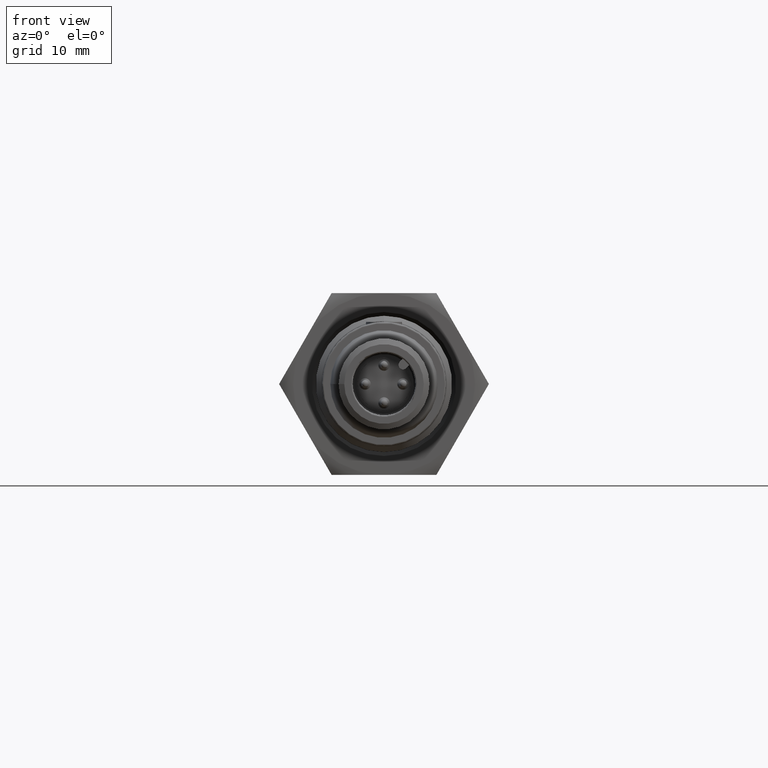
[diagram: clean part render]
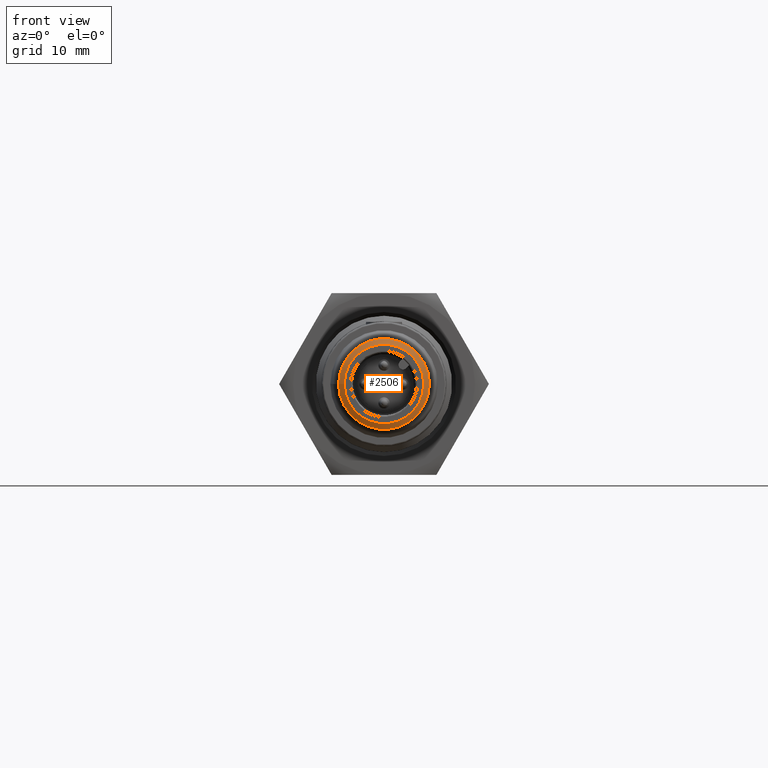
[diagram: same view with one face highlighted and labeled with its STEP entity id]
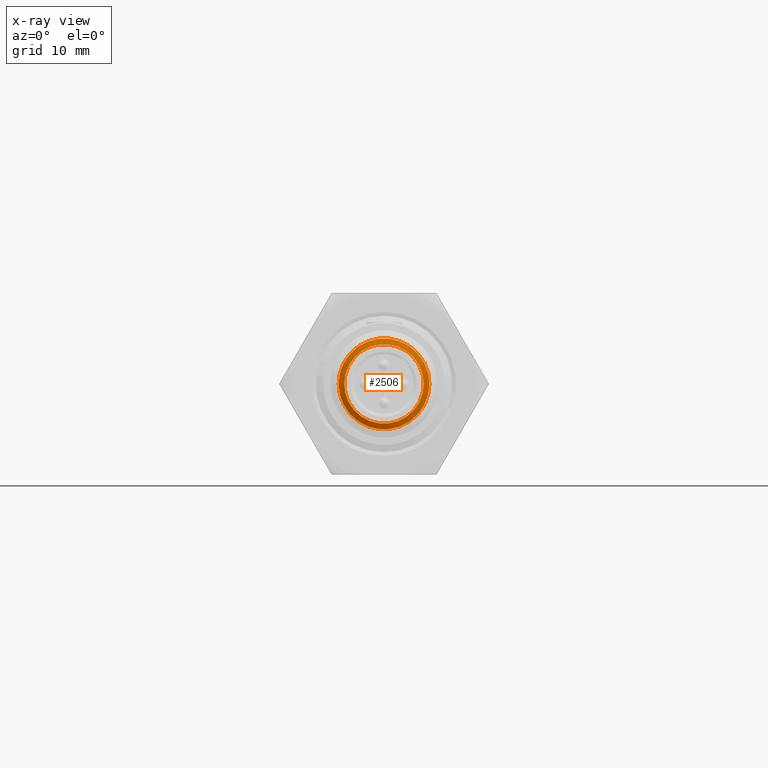
[diagram: x-ray of the same camera — body ghosted, the highlighted face saturated]
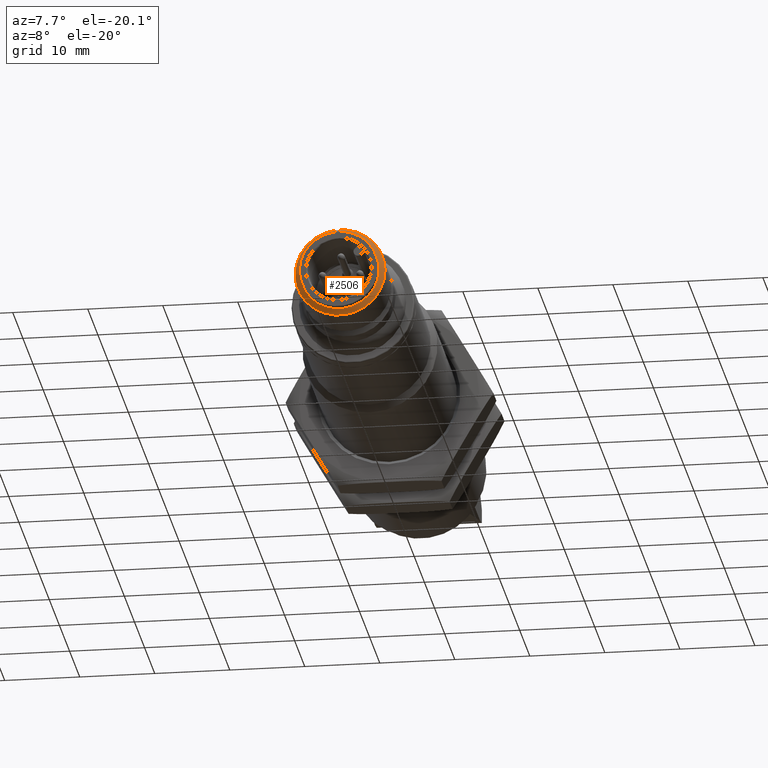
[diagram: same view with one face highlighted and labeled with its STEP entity id]
A machine part, front view. The second image highlights one B-rep face of the part: STEP entity #2506.
The next image is the same camera in x-ray: the body ghosted, the highlighted face saturated — about 0% of this face is hidden behind the body in this view.
A second angle (auxiliary view) of the same face is appended — the face is thin or edge-on in the first view.
In plain terms, the highlighted conical surface has half-angle 60 deg.
Its self-contained STEP definition (entity closure, byte-faithful):
#148 = FACE_BOUND ( 'NONE', #2478, .T. ) ;
#190 = VERTEX_POINT ( 'NONE', #1948 ) ;
#200 = CARTESIAN_POINT ( 'NONE',  ( 0.000000000000000000, -1.694880797490588620, 0.000000000000000000 ) ) ;
#203 = CARTESIAN_POINT ( 'NONE',  ( 0.000000000000000000, -1.694880797490588620, 0.000000000000000000 ) ) ;
#251 = FACE_OUTER_BOUND ( 'NONE', #4166, .T. ) ;
#713 = CARTESIAN_POINT ( 'NONE',  ( -0.2066929133858267931, -1.711928541659574865, 4.293900797244095667E-09 ) ) ;
#1534 = EDGE_CURVE ( 'NONE', #190, #190, #4874, .T. ) ;
#1820 = DIRECTION ( 'NONE',  ( 0.000000000000000000, 1.000000000000000000, 0.000000000000000000 ) ) ;
#1875 = DIRECTION ( 'NONE',  ( 0.000000000000000000, 1.000000000000000000, 0.000000000000000000 ) ) ;
#1948 = CARTESIAN_POINT ( 'NONE',  ( -0.2362204724409449064, -1.694880797490588620, 4.907315196850394102E-09 ) ) ;
#2225 = CIRCLE ( 'NONE', #4605, 0.2066929133858268486 ) ;
#2410 = DIRECTION ( 'NONE',  ( -0.9999999999999997780, 0.000000000000000000, 2.077430099999999795E-08 ) ) ;
#2478 = EDGE_LOOP ( 'NONE', ( #3721 ) ) ;
#2506 = ADVANCED_FACE ( 'NONE', ( #251, #148 ), #4242, .T. ) ;
#2630 = EDGE_CURVE ( 'NONE', #3657, #3657, #2225, .T. ) ;
#2840 = AXIS2_PLACEMENT_3D ( 'NONE', #203, #1820, #4338 ) ;
#3211 = CARTESIAN_POINT ( 'NONE',  ( 0.000000000000000000, -1.711928541659574865, 0.000000000000000000 ) ) ;
#3273 = AXIS2_PLACEMENT_3D ( 'NONE', #200, #1875, #3561 ) ;
#3561 = DIRECTION ( 'NONE',  ( -0.9999999999999997780, 0.000000000000000000, 2.077430099999999464E-08 ) ) ;
#3657 = VERTEX_POINT ( 'NONE', #713 ) ;
#3716 = DIRECTION ( 'NONE',  ( 0.000000000000000000, 1.000000000000000000, 0.000000000000000000 ) ) ;
#3721 = ORIENTED_EDGE ( 'NONE', *, *, #2630, .T. ) ;
#4166 = EDGE_LOOP ( 'NONE', ( #4645 ) ) ;
#4242 = CONICAL_SURFACE ( 'NONE', #2840, 0.2362204724409449619, 1.047197551196597853 ) ;
#4338 = DIRECTION ( 'NONE',  ( -0.9999999999999997780, 0.000000000000000000, 2.077430099999999464E-08 ) ) ;
#4605 = AXIS2_PLACEMENT_3D ( 'NONE', #3211, #3716, #2410 ) ;
#4645 = ORIENTED_EDGE ( 'NONE', *, *, #1534, .F. ) ;
#4874 = CIRCLE ( 'NONE', #3273, 0.2362204724409449619 ) ;